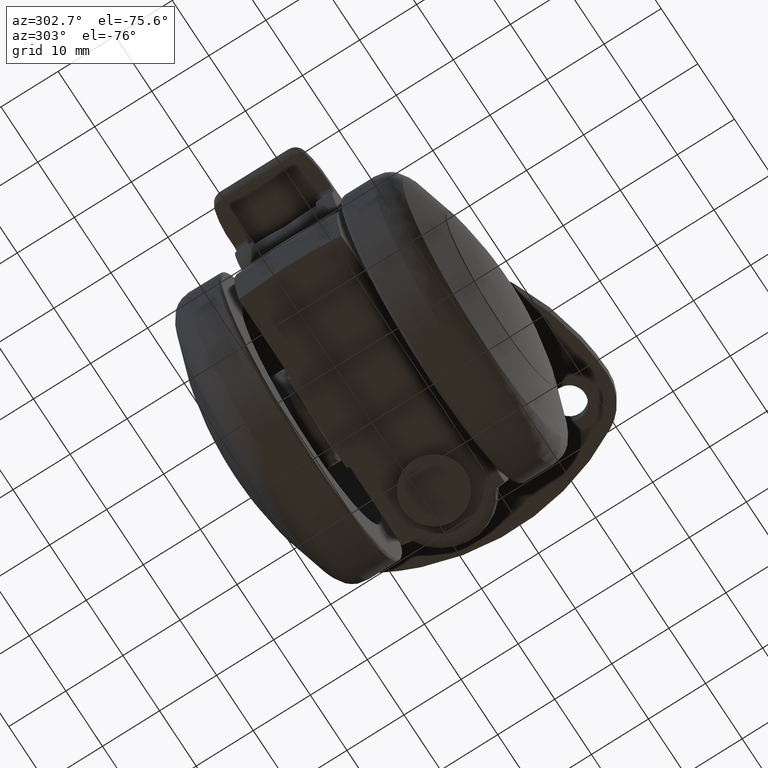
[diagram: clean part render]
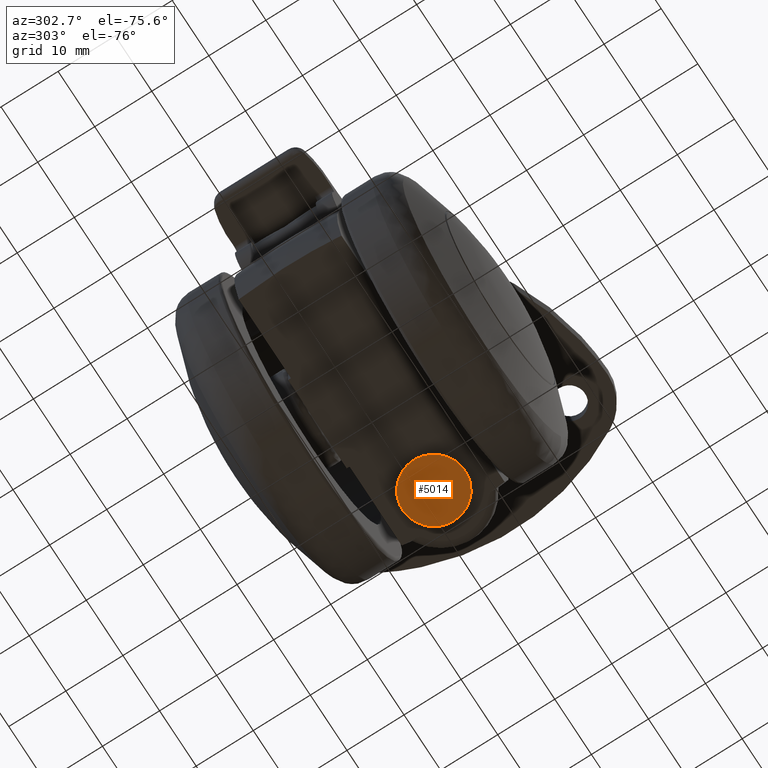
[diagram: same view with one face highlighted and labeled with its STEP entity id]
A machine part, auxiliary view. The second image highlights one B-rep face of the part: STEP entity #5014.
In plain terms, the highlighted face is a freeform B-spline surface patch.
Its self-contained STEP definition (entity closure, byte-faithful):
#4539=CARTESIAN_POINT('',(17.335766967601611,-5.489741391318247,-11.000000000027489));
#4540=VERTEX_POINT('',#4539);
#4546=CARTESIAN_POINT('',(22.499999999999890,-2.755364E-015,-11.0));
#4547=VERTEX_POINT('',#4546);
#4548=CARTESIAN_POINT('',(22.499999999999890,-2.755364E-015,-11.0));
#4549=CARTESIAN_POINT('',(22.499999999999883,-5.173883367680144,-11.0));
#4550=CARTESIAN_POINT('',(17.335766967601607,-5.489741391318247,-11.000000000027489));
#4558=(BOUNDED_CURVE()B_SPLINE_CURVE(2,(#4548,#4549,#4550),.UNSPECIFIED.,.F.,.U.)B_SPLINE_CURVE_WITH_KNOTS((3,3),(0.500000000000000,0.739332962231946),.UNSPECIFIED.)CURVE()GEOMETRIC_REPRESENTATION_ITEM()RATIONAL_B_SPLINE_CURVE((1.0,0.719603993294907,0.976072041651723))REPRESENTATION_ITEM(''));
#4559=EDGE_CURVE('',#4547,#4540,#4558,.T.);
#4561=CARTESIAN_POINT('',(22.148789683261999,1.933898859183989,-11.000000000006230));
#4562=VERTEX_POINT('',#4561);
#4563=CARTESIAN_POINT('',(22.148789683261999,1.933898859183988,-11.000000000006228));
#4564=CARTESIAN_POINT('',(22.499999999999893,0.998840623399998,-10.999999999999996));
#4565=CARTESIAN_POINT('',(22.499999999999890,-2.755364E-015,-11.0));
#4573=(BOUNDED_CURVE()B_SPLINE_CURVE(2,(#4563,#4564,#4565),.UNSPECIFIED.,.F.,.U.)B_SPLINE_CURVE_WITH_KNOTS((3,3),(0.440284170897084,0.500000000000000),.UNSPECIFIED.)CURVE()GEOMETRIC_REPRESENTATION_ITEM()RATIONAL_B_SPLINE_CURVE((0.893499554633531,0.930038554399731,1.0))REPRESENTATION_ITEM(''));
#4574=EDGE_CURVE('',#4562,#4547,#4573,.T.);
#4624=CARTESIAN_POINT('',(11.500000000000110,-2.755364E-015,-11.0));
#4625=VERTEX_POINT('',#4624);
#4626=CARTESIAN_POINT('',(11.500000000000110,-2.755364E-015,-11.0));
#4627=CARTESIAN_POINT('',(11.500000000000110,5.499999999999888,-11.0));
#4628=CARTESIAN_POINT('',(17.0,5.499999999999887,-11.0));
#4629=CARTESIAN_POINT('',(20.809352776272192,5.499999999999887,-11.0));
#4630=CARTESIAN_POINT('',(22.148789683261999,1.933898859183988,-11.000000000006228));
#4638=(BOUNDED_CURVE()B_SPLINE_CURVE(2,(#4626,#4627,#4628,#4629,#4630),.UNSPECIFIED.,.F.,.U.)B_SPLINE_CURVE_WITH_KNOTS((3,2,3),(0.0,0.250000000000000,0.440284170897084),.UNSPECIFIED.)CURVE()GEOMETRIC_REPRESENTATION_ITEM()RATIONAL_B_SPLINE_CURVE((1.0,0.707106781186548,1.0,0.777068226786816,0.893499554633531))REPRESENTATION_ITEM(''));
#4639=EDGE_CURVE('',#4625,#4562,#4638,.T.);
#4641=CARTESIAN_POINT('',(17.335766967601604,-5.489741391318248,-11.000000000027487));
#4642=CARTESIAN_POINT('',(17.168040198302108,-5.499999999999893,-11.0));
#4643=CARTESIAN_POINT('',(17.0,-5.499999999999893,-11.0));
#4644=CARTESIAN_POINT('',(11.500000000000110,-5.499999999999893,-11.0));
#4645=CARTESIAN_POINT('',(11.500000000000110,-2.755364E-015,-11.0));
#4653=(BOUNDED_CURVE()B_SPLINE_CURVE(2,(#4641,#4642,#4643,#4644,#4645),.UNSPECIFIED.,.F.,.U.)B_SPLINE_CURVE_WITH_KNOTS((3,2,3),(0.739332962231947,0.750000000000000,1.0),.UNSPECIFIED.)CURVE()GEOMETRIC_REPRESENTATION_ITEM()RATIONAL_B_SPLINE_CURVE((0.976072041651724,0.987502787891641,1.0,0.707106781186548,1.0))REPRESENTATION_ITEM(''));
#4654=EDGE_CURVE('',#4540,#4625,#4653,.T.);
#5003=CARTESIAN_POINT('',(10.950550021320259,-6.049316123589780,-11.0));
#5004=CARTESIAN_POINT('',(23.049450273722730,-6.049316123589779,-11.0));
#5005=CARTESIAN_POINT('',(10.950550021320259,6.049345824584266,-11.0));
#5006=CARTESIAN_POINT('',(23.049450273722730,6.049345824584265,-11.0));
#5007=B_SPLINE_SURFACE_WITH_KNOTS('',1,1,((#5003,#5005),(#5004,#5006)),.UNSPECIFIED.,.F.,.F.,.U.,(2,2),(2,2),(0.0,12.098900252402480),(0.0,12.098661948174049),.UNSPECIFIED.);
#5008=ORIENTED_EDGE('',*,*,#4639,.T.);
#5009=ORIENTED_EDGE('',*,*,#4574,.T.);
#5010=ORIENTED_EDGE('',*,*,#4559,.T.);
#5011=ORIENTED_EDGE('',*,*,#4654,.T.);
#5012=EDGE_LOOP('',(#5008,#5009,#5010,#5011));
#5013=FACE_OUTER_BOUND('',#5012,.T.);
#5014=ADVANCED_FACE('',(#5013),#5007,.F.);